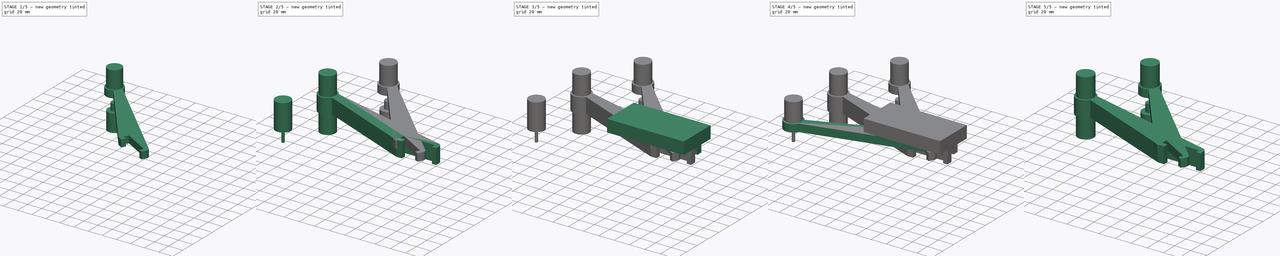
[diagram: build sequence overview — one tinted view per stage of 5, left to right]
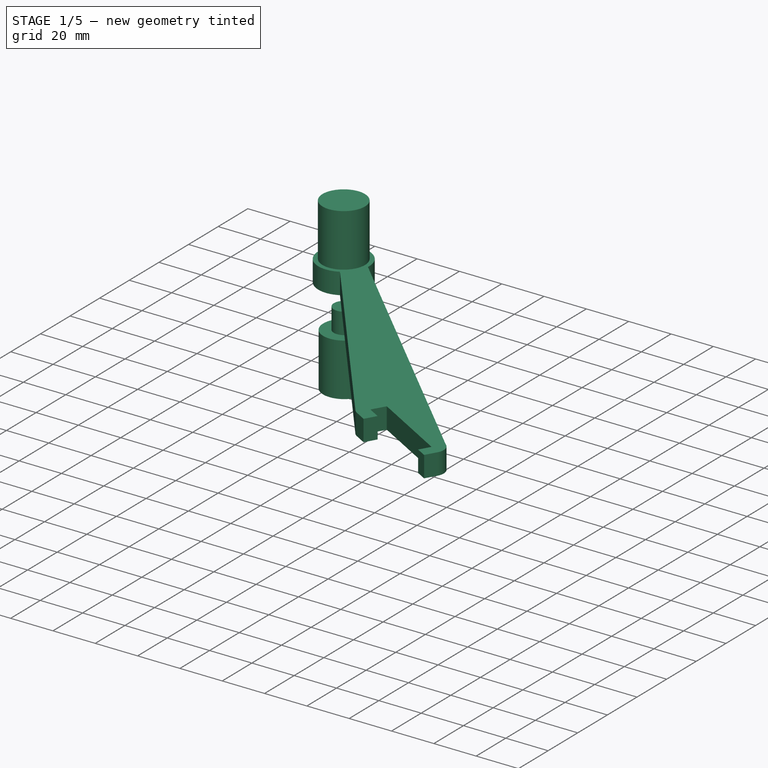
[diagram: stage 1 of 5 — iso view after this stage's code; geometry added in this stage tinted green]
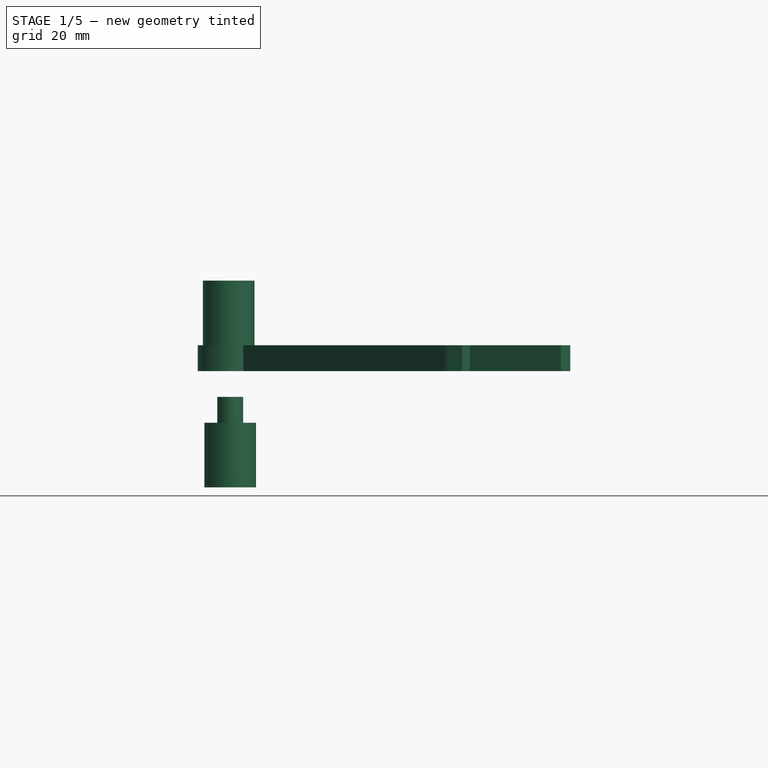
[diagram: stage 1 of 5 — front view after this stage's code; geometry added in this stage tinted green]
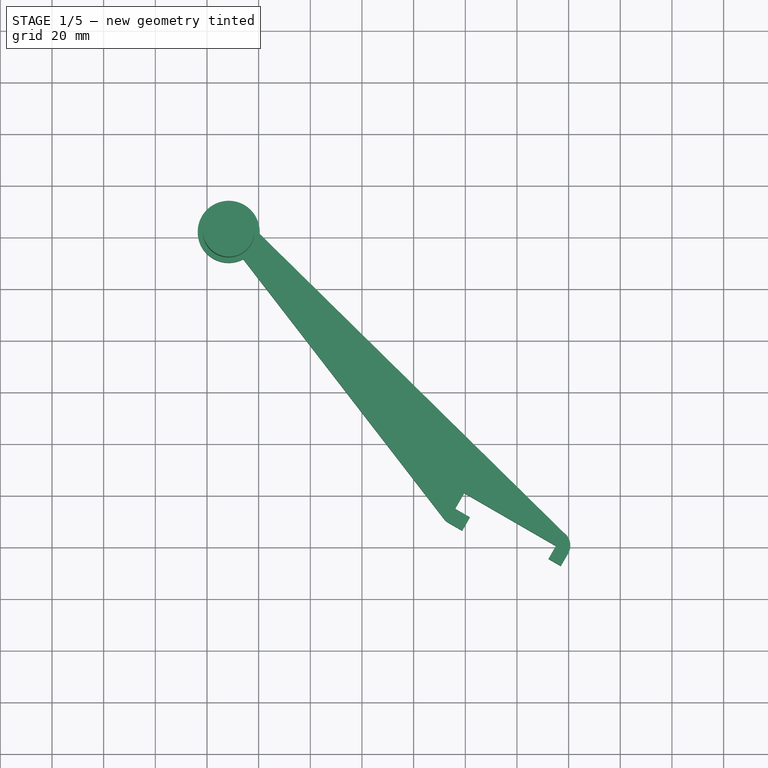
[diagram: stage 1 of 5 — top view after this stage's code; geometry added in this stage tinted green]
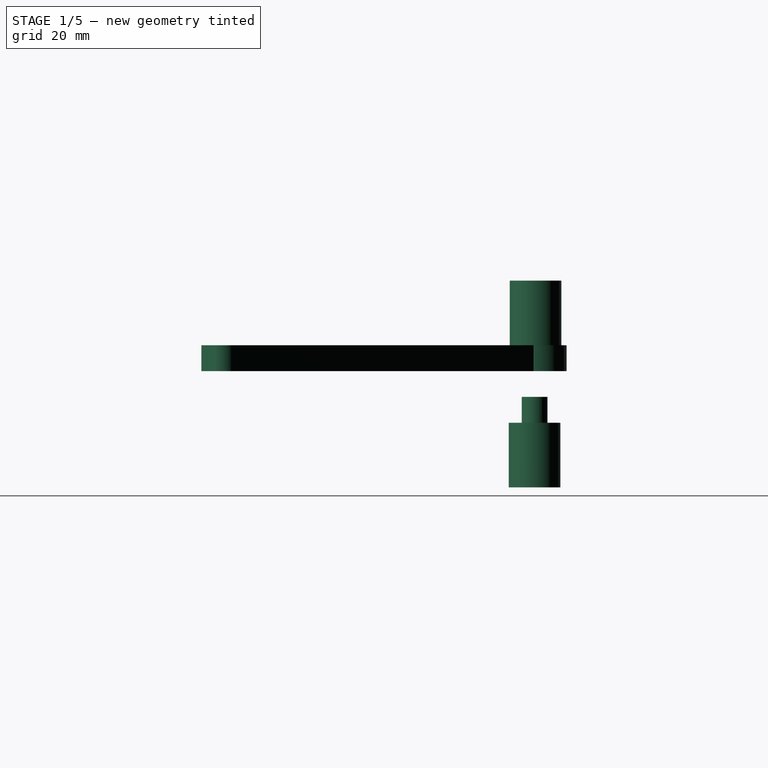
[diagram: stage 1 of 5 — right view after this stage's code; geometry added in this stage tinted green]
FCSTD DOCUMENT  (FreeCAD 0.14R3703 (Git))
Label: Reel-holder-supports
License: CC-BY 3.0
LicenseURL: http://creativecommons.org/licenses/by/3.0/
objects: Part::Prism×4, Part::Box×4, Part::Feature×4, Sketcher::SketchObject×4, Part::MultiFuse×3, Part::FeaturePython×2, Part::Mirroring×2, PartDesign::Pad×2, Part::Cylinder×2, Part::Extrusion×1, Part::Cut×1, Part::Fuse×1, PartDesign::Pocket×1
note: 34 computed .brp shape members not serialized (recipe doc carries the construction recipe); baked Part::Feature solids carry a one-line shape summary decoded from their .brp

FEATURE [Part::Feature] Part__Mirroring001  label="Reel-holder-right-support-final"
  Placement = pos=(20,-51.641,0) rot=(0.965926,0.258819,0;3.14159rad)
  shape: bbox 144.2 x 141.4 x 35 mm, 17 faces (baked)
FEATURE [Sketcher::SketchObject] Sketch002  label="Vaciado"
FEATURE [Sketcher::SketchObject] Sketch003
  ExternalGeometry = -> [Pad001001]
  Placement = pos=(0,0,0) rot=(0.965926,-0.258819,0;3.14159rad)
  Support = -> Pad001001 [Face4]
  sketch-geometry (1):
    g0: Circle CenterX=-130 CenterY=-42 CenterZ=0 NormalX=0 NormalY=0 NormalZ=1 Radius=5
  constraints (2):
    c: Coincident(g0,g-3)
    c: Radius(g0) = 5
FEATURE [PartDesign::Pocket] Pocket  label="Reel-holder-left-support-final-holed"
  Length = 10
  Placement = pos=(0,0,0) rot=(0,0,-1;0.523599rad)
  Sketch = -> Sketch003
  Type = 0
FEATURE [Part::Cylinder] Cylinder  label="Acople_base"
  Angle = 360
  Height = 10
  Radius = 5
FEATURE [Part::Cylinder] Cylinder001  label="Acople"
  Angle = 360
  Height = 25
  Placement = pos=(0,0,10) rot=(0,0,1;0rad)
  Radius = 10
FEATURE [Part::MultiFuse] Fusion  label="Acople_Final"
  Placement = pos=(-91,101,-10) rot=(0,1,0;3.14159rad)
  Shapes = -> [Cylinder001,Cylinder]
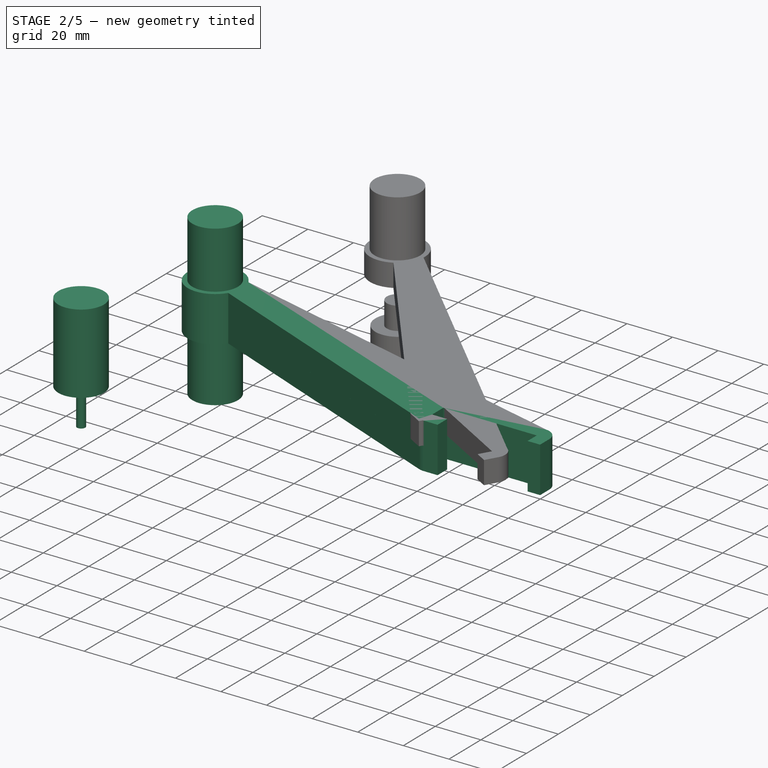
[diagram: stage 2 of 5 — iso view after this stage's code; geometry added in this stage tinted green]
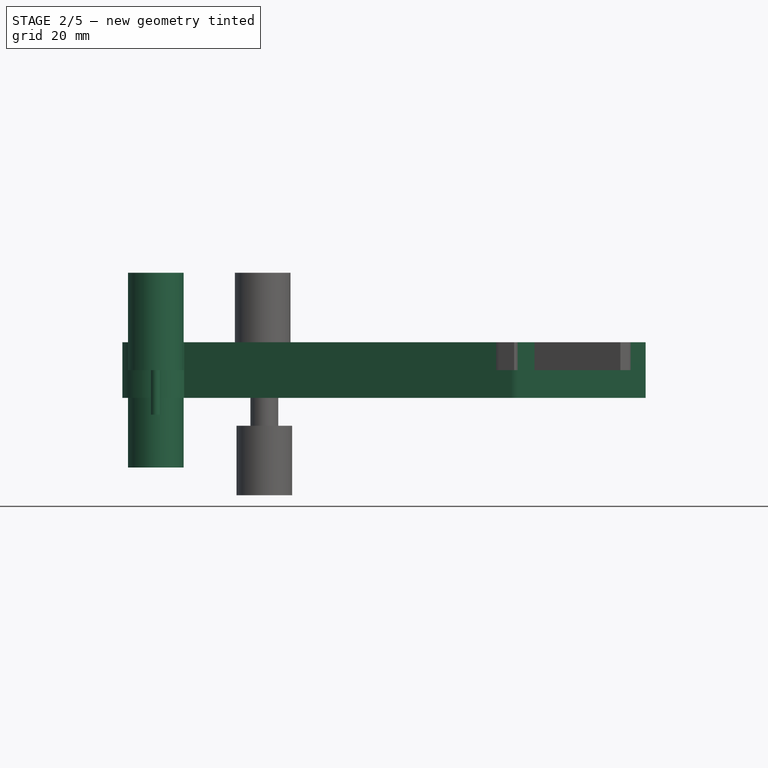
[diagram: stage 2 of 5 — front view after this stage's code; geometry added in this stage tinted green]
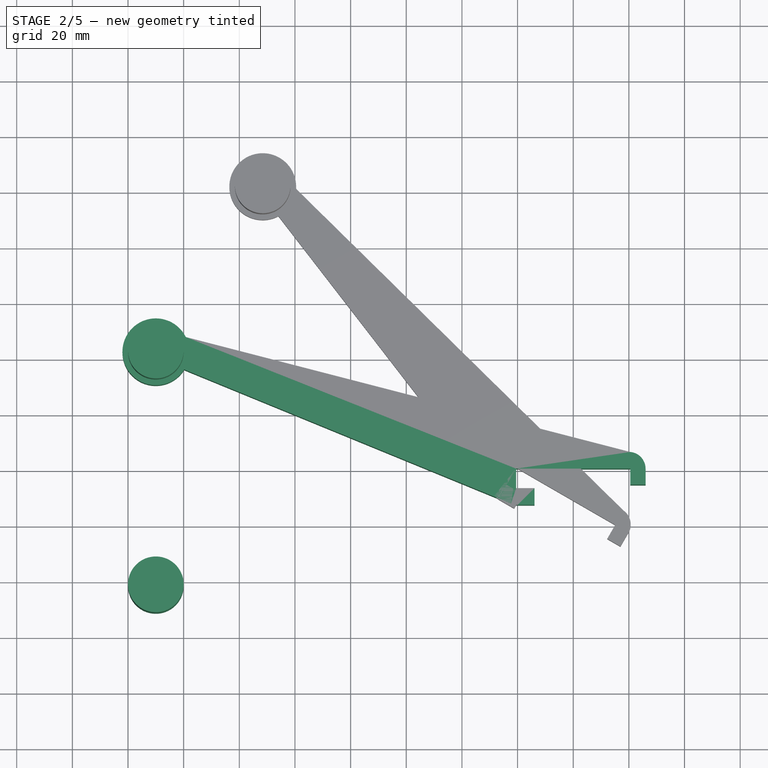
[diagram: stage 2 of 5 — top view after this stage's code; geometry added in this stage tinted green]
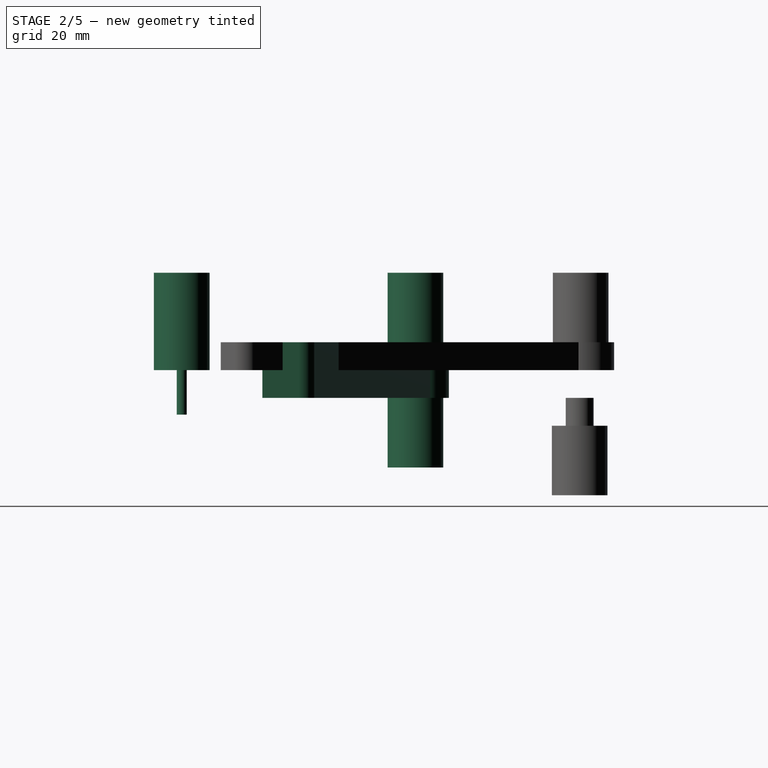
[diagram: stage 2 of 5 — right view after this stage's code; geometry added in this stage tinted green]
FEATURE [Part::Prism] prism002
  Circumradius = 1.8
  Height = 30
  Placement = pos=(-130,-42,-16) rot=(0,0,1;0rad)
  Polygon = 100
FEATURE [Part::Prism] prism003
  Circumradius = 10
  Height = 35
  Placement = pos=(-130,-42,0) rot=(0,0,1;0rad)
  Polygon = 100
FEATURE [Sketcher::SketchObject] Sketch  label="main-body-sketch"
  sketch-geometry (14):
    g0: LineSegment StartX=-0.5 StartY=-7 StartZ=0 EndX=-0.5 EndY=0 EndZ=0
    g1: LineSegment StartX=-0.5 StartY=0 StartZ=0 EndX=40.5 EndY=0 EndZ=0
    g2: LineSegment StartX=40.5 StartY=0 StartZ=0 EndX=40.5 EndY=-5.75 EndZ=0
    g3: LineSegment StartX=40.5 StartY=-5.75 StartZ=0 EndX=46 EndY=-5.75 EndZ=0
    g4: LineSegment StartX=46 StartY=-5.75 StartZ=0 EndX=46 EndY=0 EndZ=0
    g5: LineSegment StartX=-0.5 StartY=-7 StartZ=0 EndX=6.1 EndY=-7 EndZ=0
    g6: LineSegment StartX=6.1 StartY=-7 StartZ=0 EndX=6.1 EndY=-13 EndZ=0
    g7: LineSegment StartX=6.1 StartY=-13 StartZ=0 EndX=0 EndY=-13 EndZ=0
    g8: LineSegment StartX=-119.239 StartY=47.3114 StartZ=0 EndX=40.5 EndY=6 EndZ=0
    g9: ArcOfCircle CenterX=39.9773 CenterY=-3.24e-09 CenterZ=0 NormalX=0 NormalY=0 NormalZ=1 Radius=6.02273 StartAngle=5.38e-10 EndAngle=1.48389
    g10: ArcOfCircle CenterX=-130 CenterY=42 CenterZ=0 NormalX=0 NormalY=0 NormalZ=1 Radius=12 StartAngle=0.458518 EndAngle=5.72468
    g11: LineSegment StartX=-119.823 StartY=35.641 StartZ=0 EndX=-2.35737 EndY=-12.5354 EndZ=0
    g12: LineSegment [constr] StartX=-130 StartY=42 StartZ=0 EndX=-119.823 EndY=35.641 EndZ=0
    g13: ArcOfCircle CenterX=-2.23872e-05 CenterY=-6.78756 CenterZ=0 NormalX=0 NormalY=0 NormalZ=1 Radius=6.21244 StartAngle=4.32318 EndAngle=4.71239
  constraints (44):
    c: Coincident(g0,g1)
    c: Coincident(g1,g2)
    c: Coincident(g2,g3)
    c: Coincident(g3,g4)
    c: Vertical(g0)
    c: Horizontal(g1)
    c: Vertical(g2)
    c: Horizontal(g3)
    c: PointOnObject(g0,g-1)
    c: DistanceX(g-1,g0) = -0.5
    c: DistanceX(g1) = 41
    c: DistanceY(g2) = -5.75
    c: DistanceX(g3) = 5.5
    c: DistanceY(g0) = 7
    c: Coincident(g5,g6)
    c: Coincident(g6,g7)
    c: Horizontal(g5)
    c: Horizontal(g7)
    c: Vertical(g6)
    c: Coincident(g5,g0)
    c: PointOnObject(g7,g-2)
    c: DistanceX(g5) = 6.6
    c: DistanceY(g6) = -6
    c: PointOnObject(g4,g-1)
    c: Coincident(g9,g4)
    c: Vertical(g4)
    c: Coincident(g8,g9)
    c: PointOnObject(g8,g2)
    c: DistanceY(g8,g1) = -6
    c: Tangent(g9,g4)
    c: Angle(g8,g1) = 0.253073
    c: DistanceX(g10) = -130
    c: DistanceY(g10) = 42
    c: Radius(g10) = 12
    c: Coincident(g8,g10)
    c: Coincident(g11,g10)
    c: Coincident(g12,g10)
    c: Coincident(g12,g10)
    c: Angle(g-1,g12) = 2.58309
    c: Angle(g-1,g11) = 2.75238
    c: Coincident(g13,g11)
    c: Coincident(g13,g7)
    c: Tangent(g11,g13)
    c: Tangent(g13,g7)
FEATURE [PartDesign::Pad] Pad  label="main-body"
  Length = 10
  Length2 = 100
  Sketch = -> Sketch
  Type = 0
FEATURE [Sketcher::SketchObject] Sketch001  label="support-sketch"
  ExternalGeometry = -> [Pad]
  Placement = pos=(0,0,10) rot=(0,0,1;0rad)
  Support = -> Pad [Face15]
  sketch-geometry (1):
    g0: Circle CenterX=-130 CenterY=42 CenterZ=0 NormalX=0 NormalY=0 NormalZ=1 Radius=10
  constraints (2):
    c: Coincident(g0,g-3)
    c: Radius(g0) = 10
FEATURE [PartDesign::Pad] Pad001  label="support"
  Length = 25
  Length2 = 100
  Sketch = -> Sketch001
  Type = 0
FEATURE [Part::Feature] Pad001001  label="Reel-holder-left-support-final"
  Placement = pos=(0,0,0) rot=(0,0,-1;0.523599rad)
  shape: bbox 144.2 x 141.4 x 35 mm, 17 faces (baked)
FEATURE [Part::Feature] Pad001002  label="Reel-holder-left-support"
  shape: bbox 188 x 67 x 35 mm, 17 faces (baked)
FEATURE [Part::Mirroring] Part__Mirroring  label="Reel-holder-left-support (Mirror #2)"
  Base = (0,0,0)
  Normal = (0,0,1)
  Source = -> Pad001002
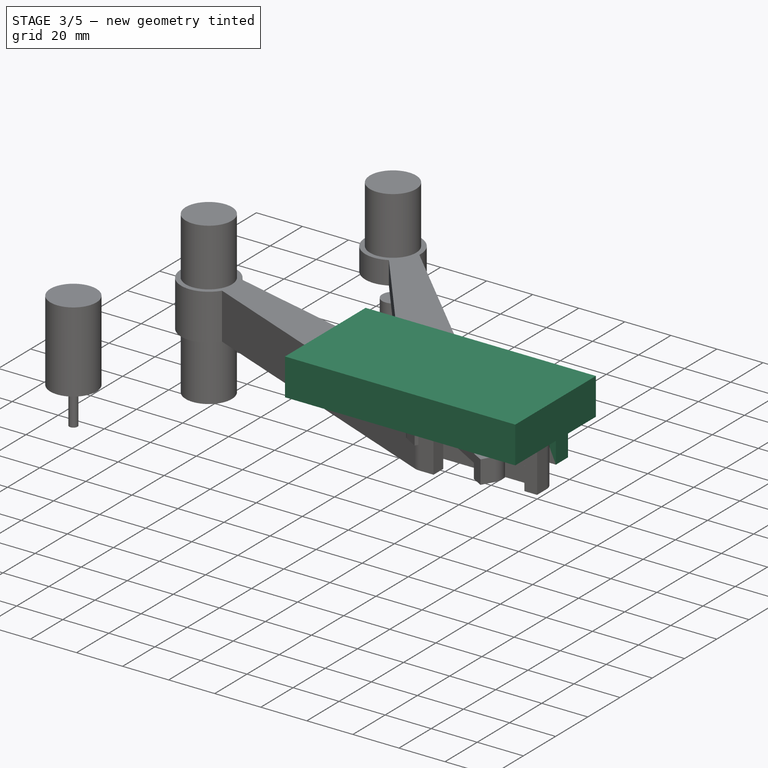
[diagram: stage 3 of 5 — iso view after this stage's code; geometry added in this stage tinted green]
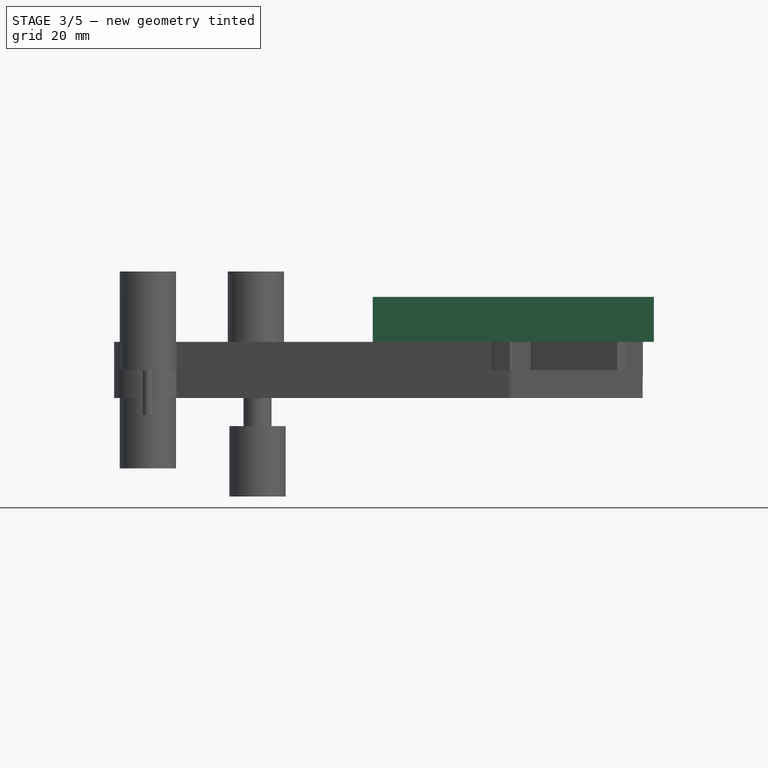
[diagram: stage 3 of 5 — front view after this stage's code; geometry added in this stage tinted green]
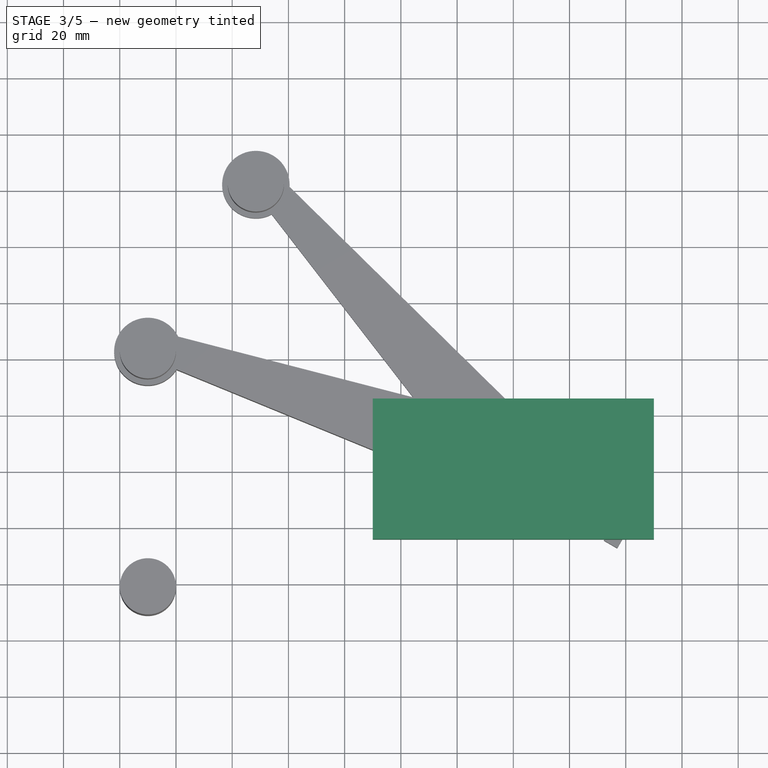
[diagram: stage 3 of 5 — top view after this stage's code; geometry added in this stage tinted green]
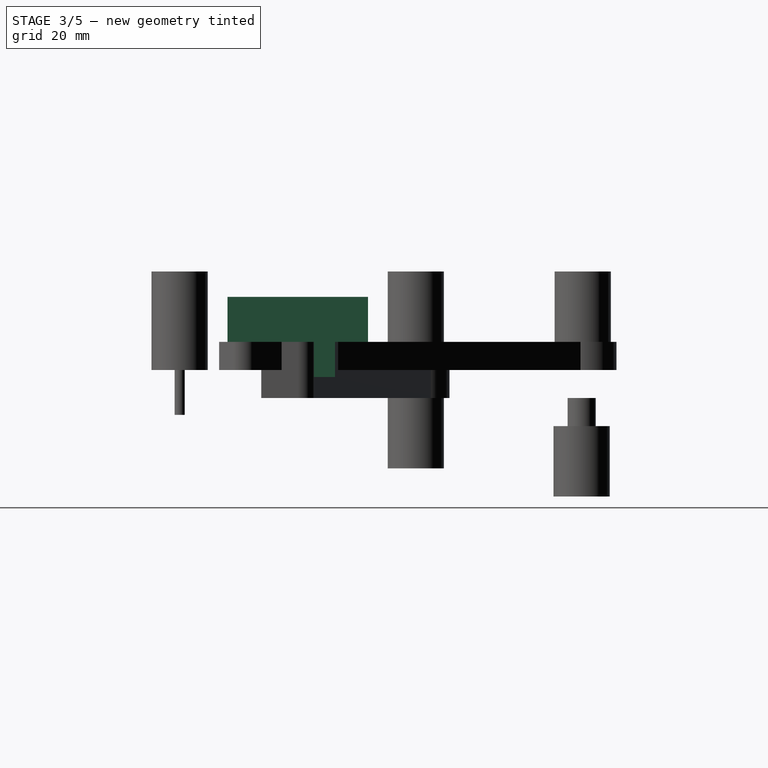
[diagram: stage 3 of 5 — right view after this stage's code; geometry added in this stage tinted green]
FEATURE [Part::Box] cube001
  Height = 25
  Length = 41
  Placement = pos=(-0.5,0,-2.5) rot=(0,0,1;0rad)
  Width = 7
FEATURE [Part::Box] cube002
  Height = 25
  Length = 40
  Placement = pos=(6.1,5.75,-2.5) rot=(0,0,1;0rad)
  Width = 7.5
FEATURE [Part::Box] cube003
  Height = 16
  Length = 100
  Placement = pos=(-50,-25,10) rot=(0,0,1;0rad)
  Width = 50
FEATURE [Part::MultiFuse] union001
  Shapes = -> [cube001,cube002,cube003,prism002]
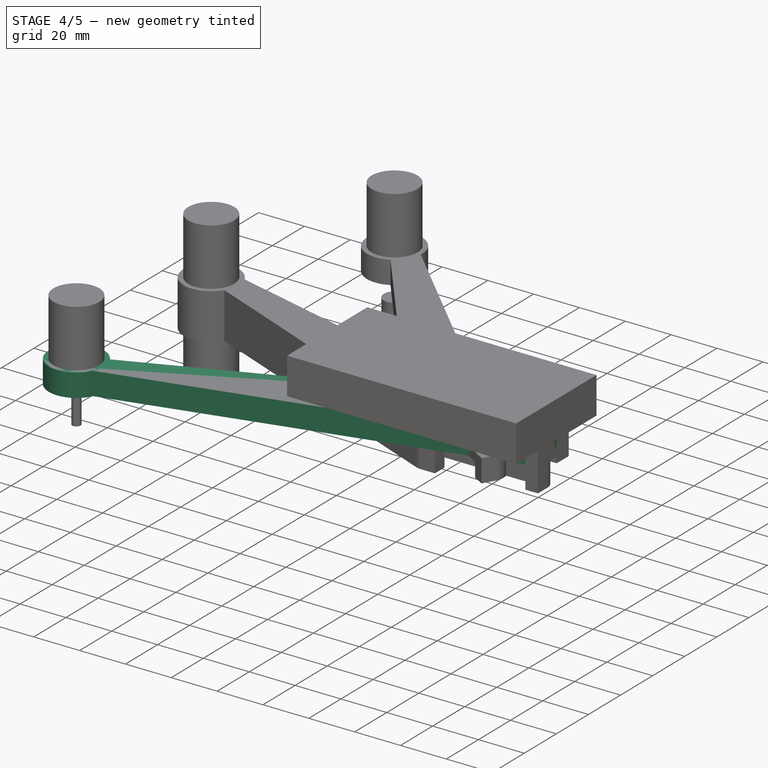
[diagram: stage 4 of 5 — iso view after this stage's code; geometry added in this stage tinted green]
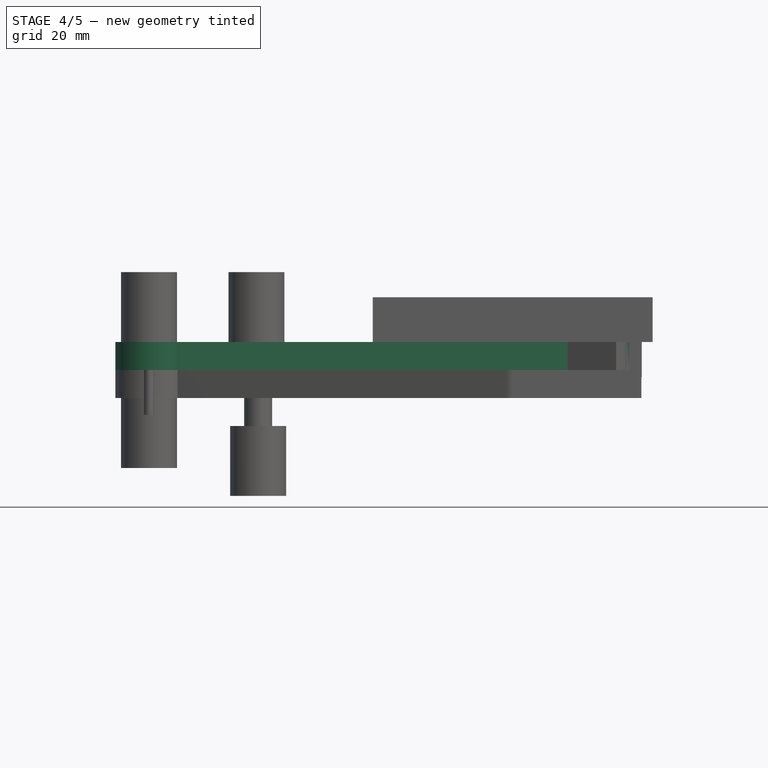
[diagram: stage 4 of 5 — front view after this stage's code; geometry added in this stage tinted green]
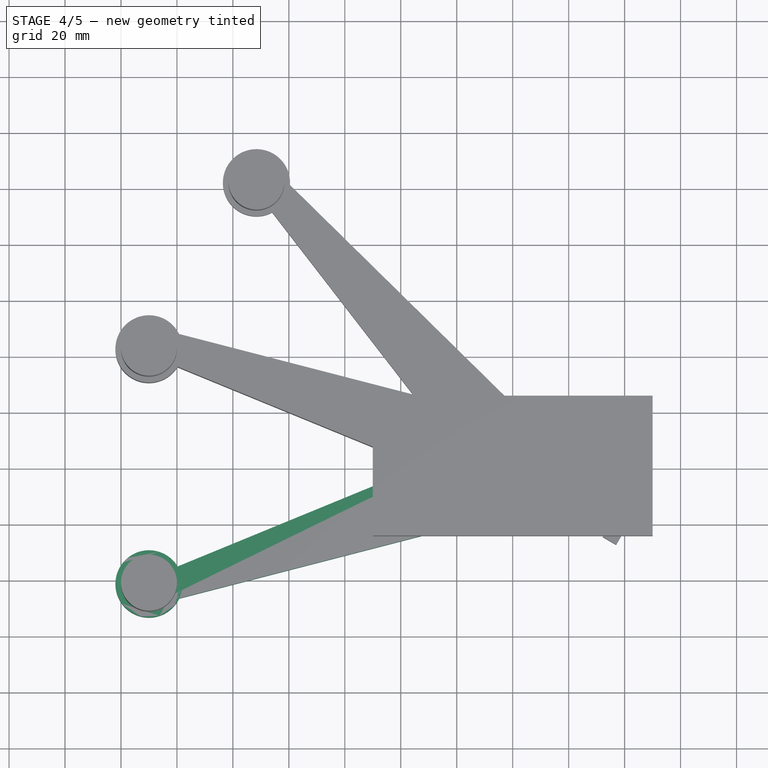
[diagram: stage 4 of 5 — top view after this stage's code; geometry added in this stage tinted green]
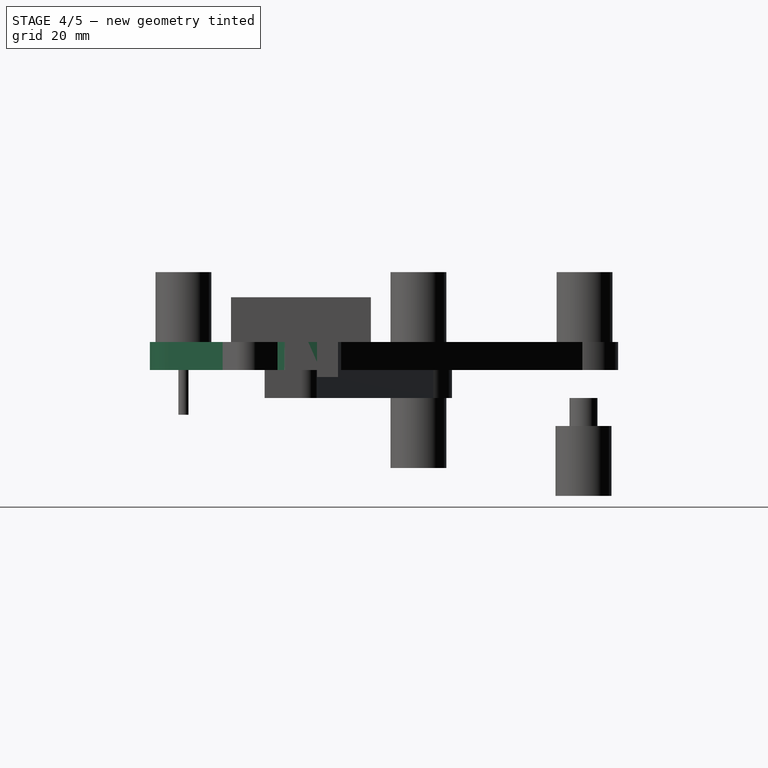
[diagram: stage 4 of 5 — right view after this stage's code; geometry added in this stage tinted green]
FEATURE [Part::Prism] prism
  Circumradius = 6
  Height = 8
  Placement = pos=(0,0,-4) rot=(0,0,1;0rad)
  Polygon = 100
FEATURE [Part::Box] cube
  Height = 8
  Length = 40
  Placement = pos=(0,0,4) rot=(0,0,1;0rad)
  Width = 7
FEATURE [Part::FeaturePython] minkowski  # WARN: FeaturePython — macro-defined, semantics opaque (R4)
  Arguments = {'convexity': '0'}
  Children = -> [prism,cube]
  Operation = minkowski
FEATURE [Part::Feature] polygon
  shape: bbox 173 x 62.4 x 2e-07 mm, 1 faces, 0 solids (baked)
FEATURE [Part::FeaturePython] RefineLinearExtrude  # WARN: FeaturePython — macro-defined, semantics opaque (R4)
  Base = -> polygon
FEATURE [Part::Extrusion] LinearExtrude
  Base = -> RefineLinearExtrude
  Dir = (0,0,10)
  Solid = true
FEATURE [Part::Prism] prism001
  Circumradius = 12
  Height = 10
  Placement = pos=(-130,-42,0) rot=(0,0,1;0rad)
  Polygon = 100
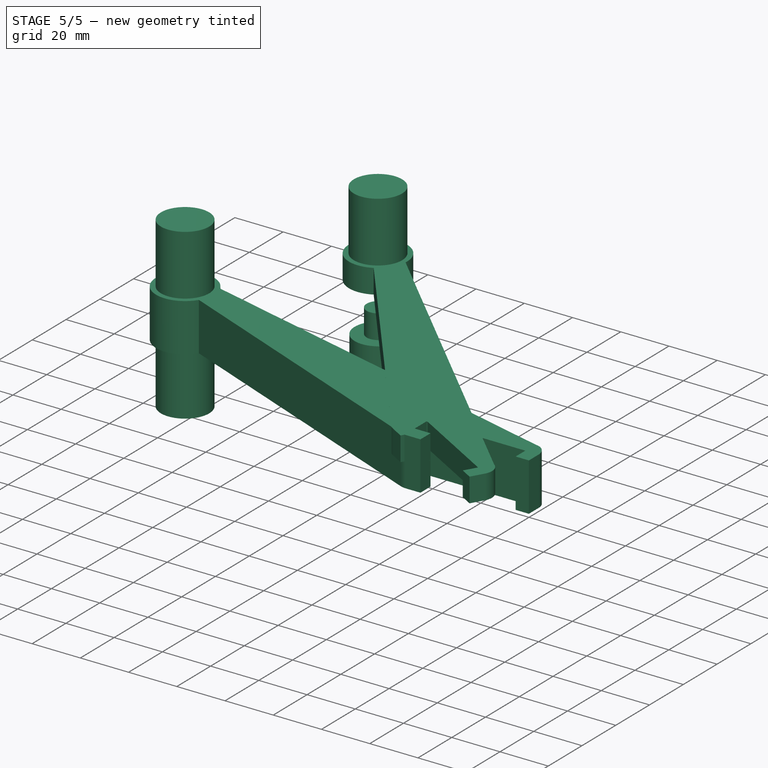
[diagram: stage 5 of 5 — iso view after this stage's code; geometry added in this stage tinted green]
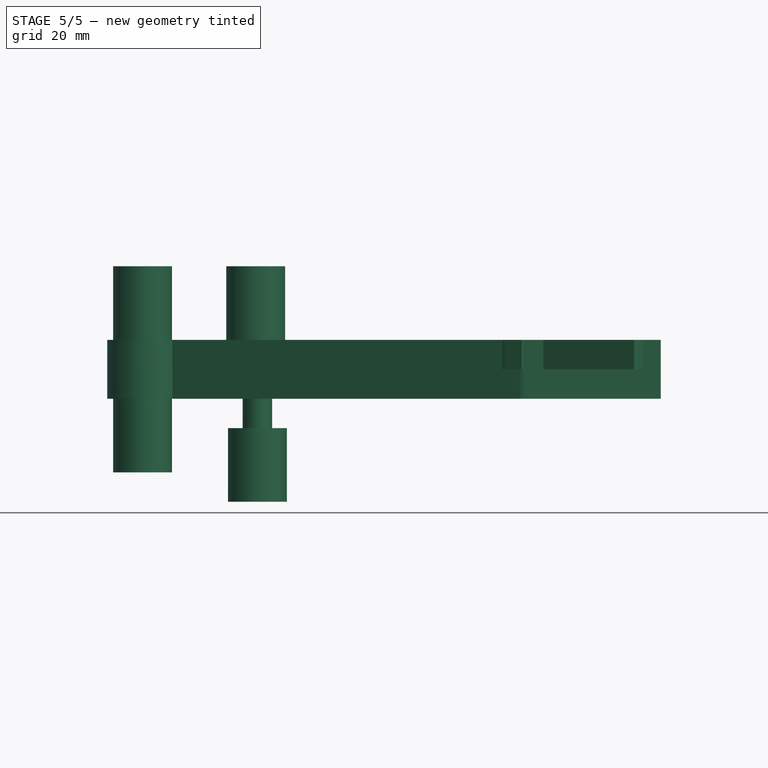
[diagram: stage 5 of 5 — front view after this stage's code; geometry added in this stage tinted green]
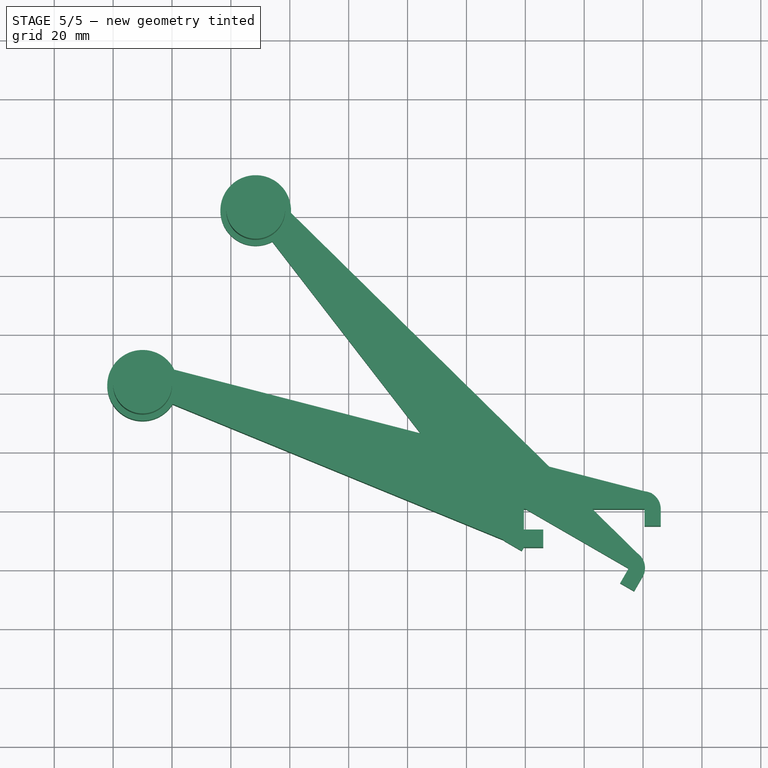
[diagram: stage 5 of 5 — top view after this stage's code; geometry added in this stage tinted green]
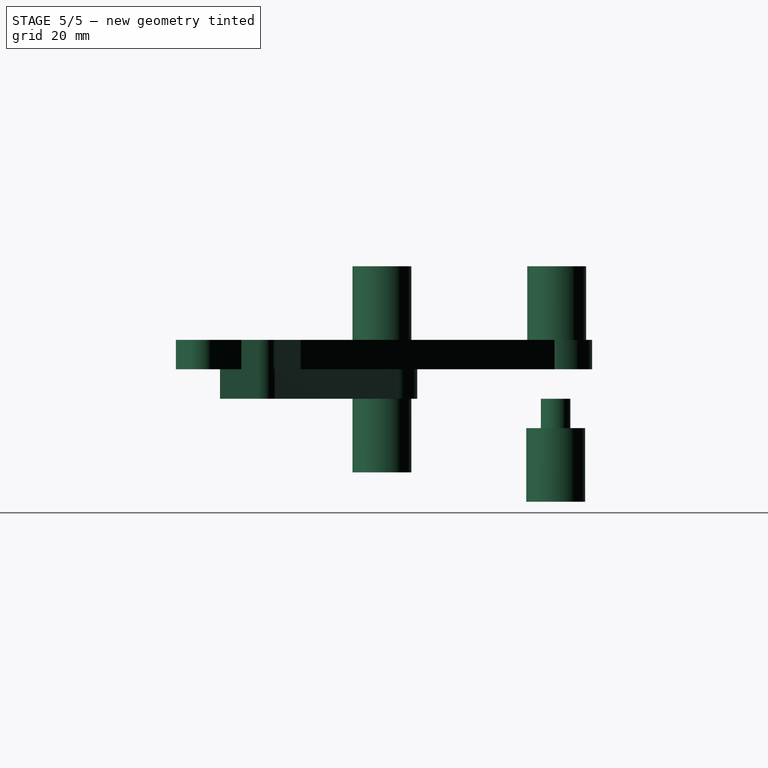
[diagram: stage 5 of 5 — right view after this stage's code; geometry added in this stage tinted green]
FEATURE [Part::MultiFuse] union
  Shapes = -> [minkowski,LinearExtrude,prism001]
FEATURE [Part::Cut] difference
  Base = -> union
  Tool = -> union001
FEATURE [Part::Fuse] union002
  Base = -> difference
  Tool = -> prism003
FEATURE [Part::Mirroring] mirr_union002  label="mirrored union002"
  Base = (0,0,0)
  Normal = (0,1,0)
  Source = -> union002
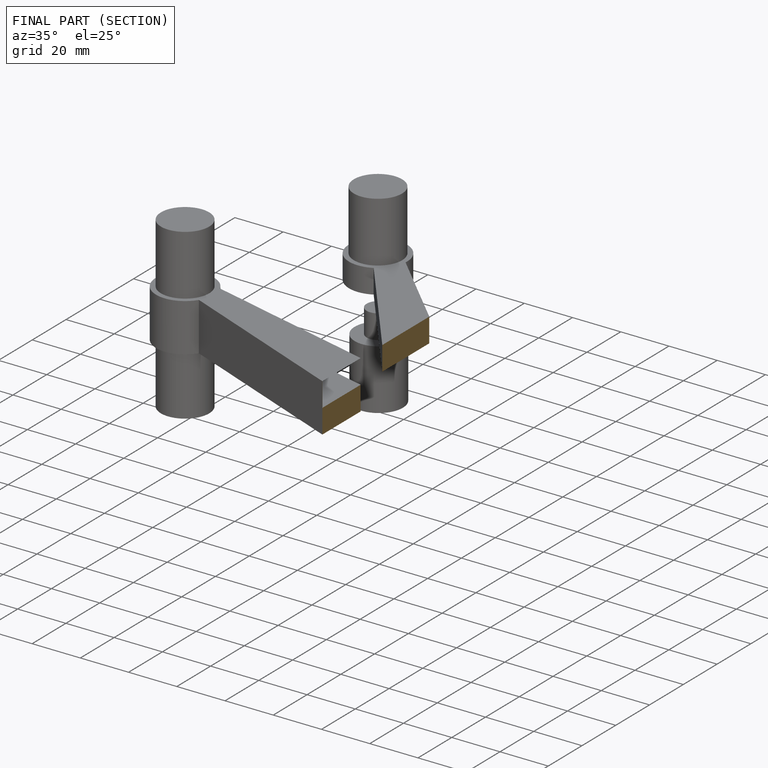
[diagram: finished part — half-section view (interior)]
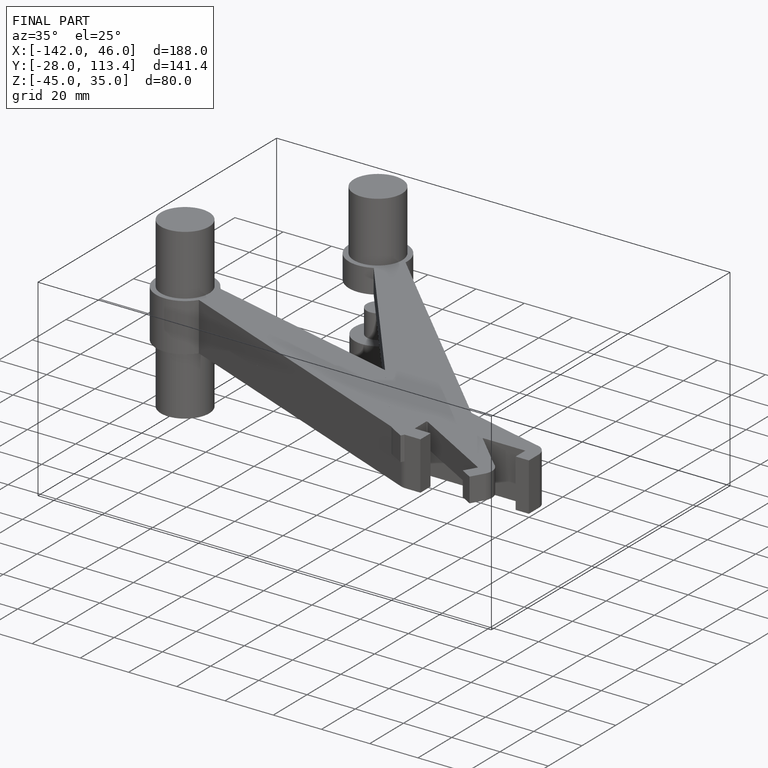
[diagram: finished part — iso view with bounding-box wireframe]
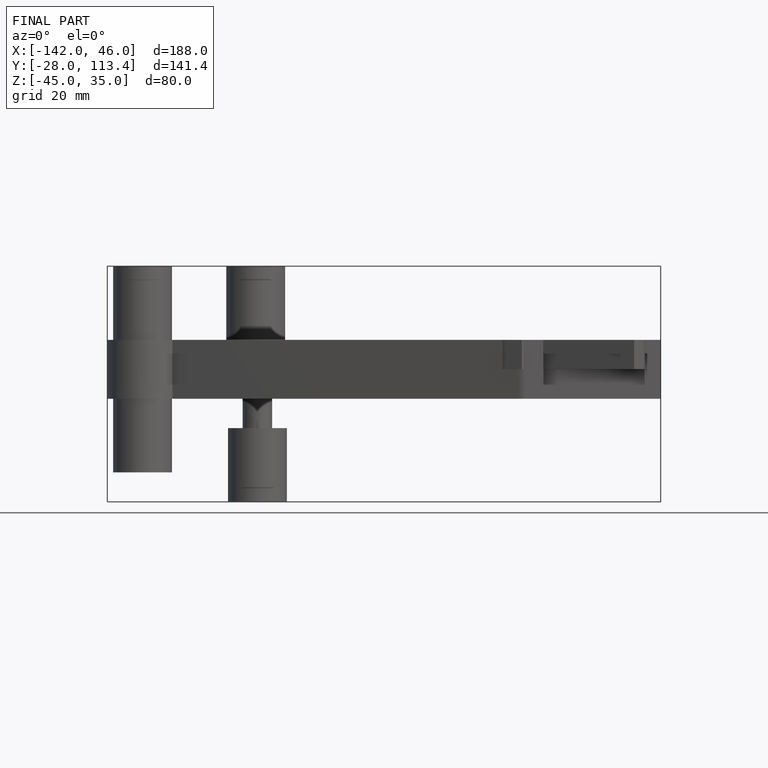
[diagram: finished part — front view with bounding-box wireframe]
